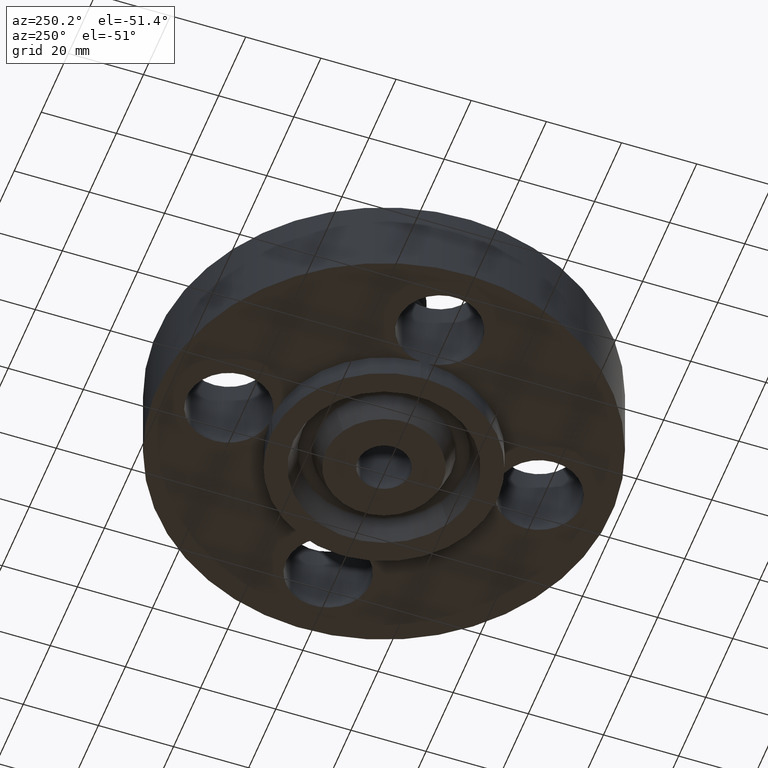
[diagram: clean part render]
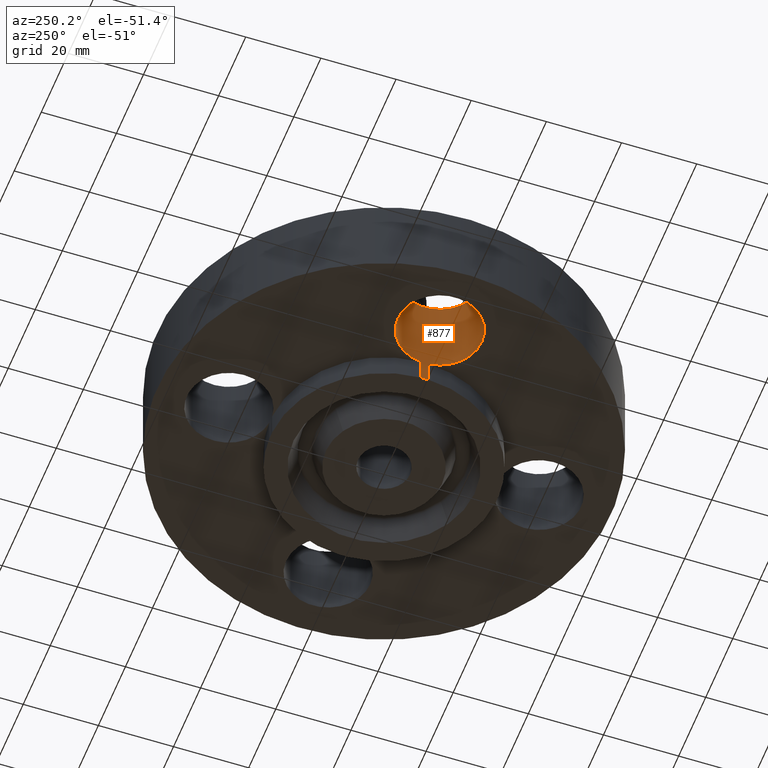
[diagram: same view with one face highlighted and labeled with its STEP entity id]
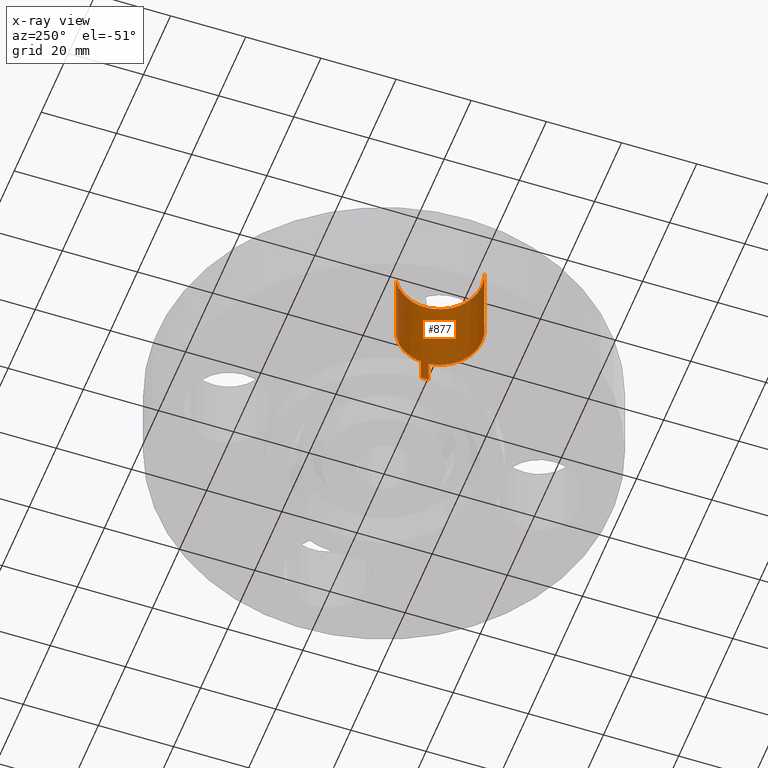
[diagram: x-ray of the same camera — body ghosted, the highlighted face saturated]
A machine part, auxiliary view. The second image highlights one B-rep face of the part: STEP entity #877.
The next image is the same camera in x-ray: the body ghosted, the highlighted face saturated — about 7% of this face is hidden behind the body in this view.
In plain terms, the highlighted cylindrical surface (partial cylindrical patch) has radius 11.176 mm, axis along (0, 0, -1).
Its self-contained STEP definition (entity closure, byte-faithful):
#665=AXIS2_PLACEMENT_3D('Circle Axis2P3D',#663,#664,$) ;
#679=AXIS2_PLACEMENT_3D('Circle Axis2P3D',#677,#678,$) ;
#829=AXIS2_PLACEMENT_3D('Cylinder Axis2P3D',#826,#827,#828) ;
#859=AXIS2_PLACEMENT_3D('Circle Axis2P3D',#857,#858,$) ;
#864=AXIS2_PLACEMENT_3D('Circle Axis2P3D',#862,#863,$) ;
#493=CARTESIAN_POINT('Vertex',(-1.186825,-0.0400333532821,-0.250000000001)) ;
#507=CARTESIAN_POINT('Vertex',(-1.186825,-0.0400333532821,0.)) ;
#510=CARTESIAN_POINT('Line Origine',(-1.186825,-0.0400333532821,-0.125000000001)) ;
#526=CARTESIAN_POINT('Vertex',(-1.186825,0.0400333532821,0.)) ;
#533=CARTESIAN_POINT('Vertex',(-1.186825,0.0400333532821,-0.250000000001)) ;
#536=CARTESIAN_POINT('Line Origine',(-1.186825,0.0400333532821,-0.125000000001)) ;
#663=CARTESIAN_POINT('Axis2P3D Location',(-1.62500000001,-1.39870617276E-016,0.)) ;
#667=CARTESIAN_POINT('Vertex',(-1.41405276302,0.386136327233,0.)) ;
#674=CARTESIAN_POINT('Vertex',(-1.83594723699,-0.386136327233,0.)) ;
#677=CARTESIAN_POINT('Axis2P3D Location',(-1.62500000001,-1.39870617276E-016,0.)) ;
#826=CARTESIAN_POINT('Axis2P3D Location',(-1.62500000001,-2.98507657293E-016,0.87606299213)) ;
#831=CARTESIAN_POINT('Line Origine',(-1.83594723699,-0.386136327233,0.315000000001)) ;
#835=CARTESIAN_POINT('Vertex',(-1.83594723699,-0.386136327233,0.880000000004)) ;
#838=CARTESIAN_POINT('Line Origine',(-1.41405276302,0.386136327233,0.315000000001)) ;
#842=CARTESIAN_POINT('Vertex',(-1.41405276302,0.386136327233,0.880000000004)) ;
#857=CARTESIAN_POINT('Axis2P3D Location',(-1.62500000001,-2.98507657293E-016,-0.250000000001)) ;
#862=CARTESIAN_POINT('Axis2P3D Location',(-1.62500000001,-2.98507657293E-016,0.880000000004)) ;
#511=DIRECTION('Vector Direction',(0.,0.,-0.0393700787402)) ;
#537=DIRECTION('Vector Direction',(0.,0.,-0.0393700787402)) ;
#664=DIRECTION('Axis2P3D Direction',(0.,0.,-0.0393700787402)) ;
#678=DIRECTION('Axis2P3D Direction',(0.,0.,-0.0393700787402)) ;
#827=DIRECTION('Axis2P3D Direction',(0.,0.,-0.0393700787402)) ;
#828=DIRECTION('Axis2P3D XDirection',(0.0188750212049,0.0345504945626,0.)) ;
#832=DIRECTION('Vector Direction',(0.,0.,-0.0393700787402)) ;
#839=DIRECTION('Vector Direction',(0.,0.,-0.0393700787402)) ;
#858=DIRECTION('Axis2P3D Direction',(0.,0.,-0.0393700787402)) ;
#863=DIRECTION('Axis2P3D Direction',(0.,0.,-0.0393700787402)) ;
#512=VECTOR('Line Direction',#511,0.0393700787402) ;
#538=VECTOR('Line Direction',#537,0.0393700787402) ;
#833=VECTOR('Line Direction',#832,0.0393700787402) ;
#840=VECTOR('Line Direction',#839,0.0393700787402) ;
#868=ORIENTED_EDGE('',*,*,#844,.F.) ;
#869=ORIENTED_EDGE('',*,*,#669,.T.) ;
#870=ORIENTED_EDGE('',*,*,#540,.T.) ;
#871=ORIENTED_EDGE('',*,*,#861,.T.) ;
#872=ORIENTED_EDGE('',*,*,#514,.F.) ;
#873=ORIENTED_EDGE('',*,*,#681,.T.) ;
#874=ORIENTED_EDGE('',*,*,#837,.T.) ;
#875=ORIENTED_EDGE('',*,*,#866,.F.) ;
#877=ADVANCED_FACE('PartBody',(#876),#830,.F.) ;
#666=CIRCLE('generated circle',#665,0.440000000002) ;
#680=CIRCLE('generated circle',#679,0.440000000002) ;
#860=CIRCLE('generated circle',#859,0.440000000002) ;
#865=CIRCLE('generated circle',#864,0.440000000002) ;
#830=CYLINDRICAL_SURFACE('generated cylinder',#829,0.440000000002) ;
#514=EDGE_CURVE('',#508,#494,#513,.T.) ;
#540=EDGE_CURVE('',#527,#534,#539,.T.) ;
#669=EDGE_CURVE('',#668,#527,#666,.T.) ;
#681=EDGE_CURVE('',#508,#675,#680,.T.) ;
#837=EDGE_CURVE('',#675,#836,#834,.F.) ;
#844=EDGE_CURVE('',#668,#843,#841,.F.) ;
#861=EDGE_CURVE('',#534,#494,#860,.T.) ;
#866=EDGE_CURVE('',#843,#836,#865,.T.) ;
#867=EDGE_LOOP('',(#868,#869,#870,#871,#872,#873,#874,#875)) ;
#876=FACE_OUTER_BOUND('',#867,.T.) ;
#513=LINE('Line',#510,#512) ;
#539=LINE('Line',#536,#538) ;
#834=LINE('Line',#831,#833) ;
#841=LINE('Line',#838,#840) ;
#494=VERTEX_POINT('',#493) ;
#508=VERTEX_POINT('',#507) ;
#527=VERTEX_POINT('',#526) ;
#534=VERTEX_POINT('',#533) ;
#668=VERTEX_POINT('',#667) ;
#675=VERTEX_POINT('',#674) ;
#836=VERTEX_POINT('',#835) ;
#843=VERTEX_POINT('',#842) ;